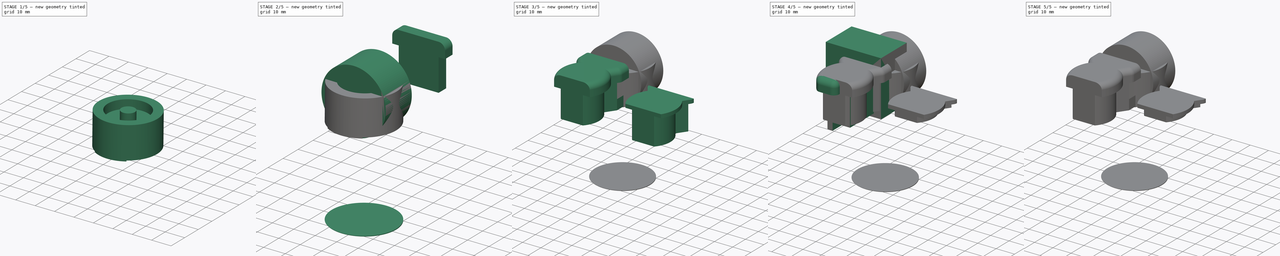
[diagram: build sequence overview — one tinted view per stage of 5, left to right]
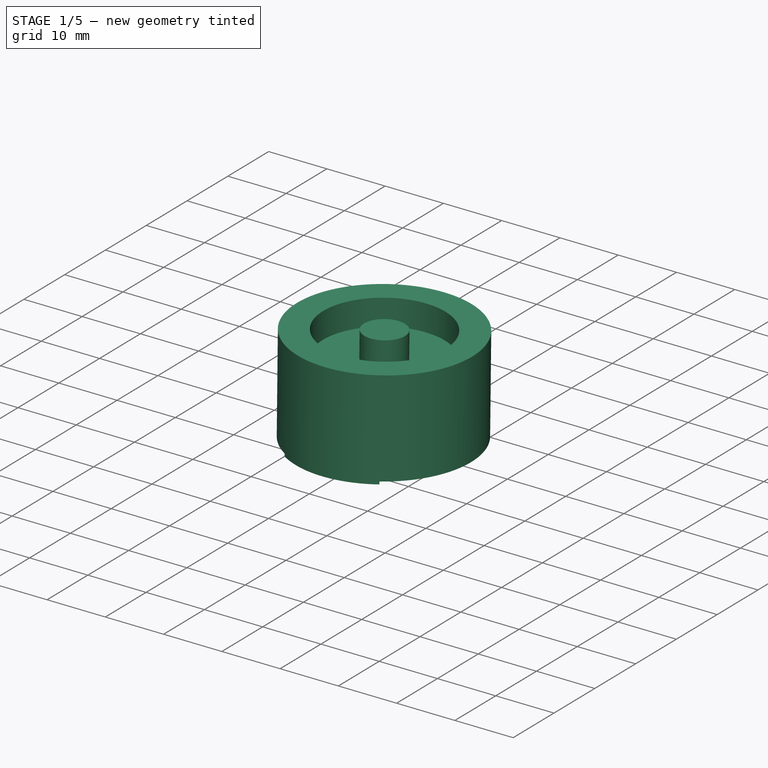
[diagram: stage 1 of 5 — iso view after this stage's code; geometry added in this stage tinted green]
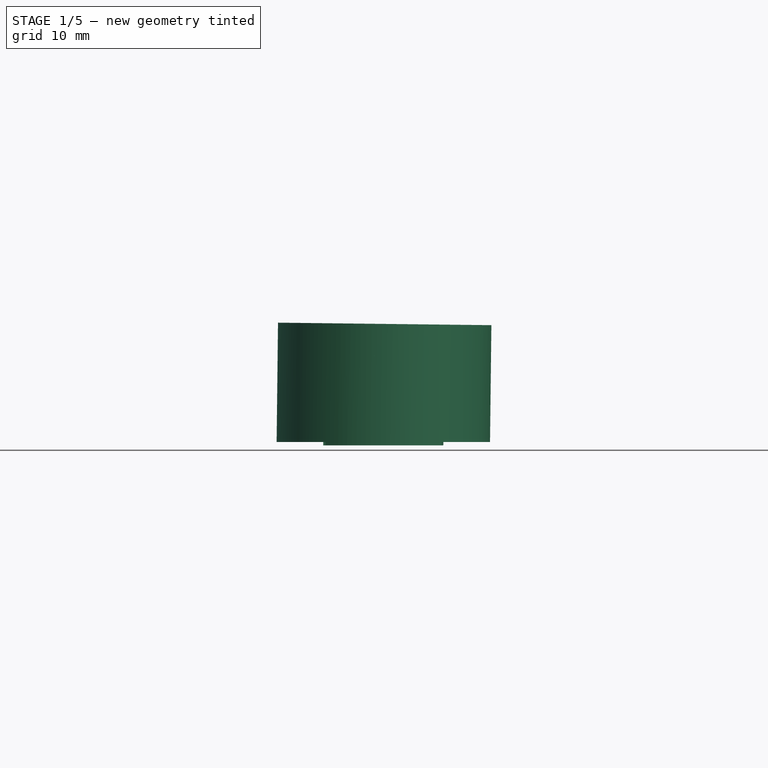
[diagram: stage 1 of 5 — front view after this stage's code; geometry added in this stage tinted green]
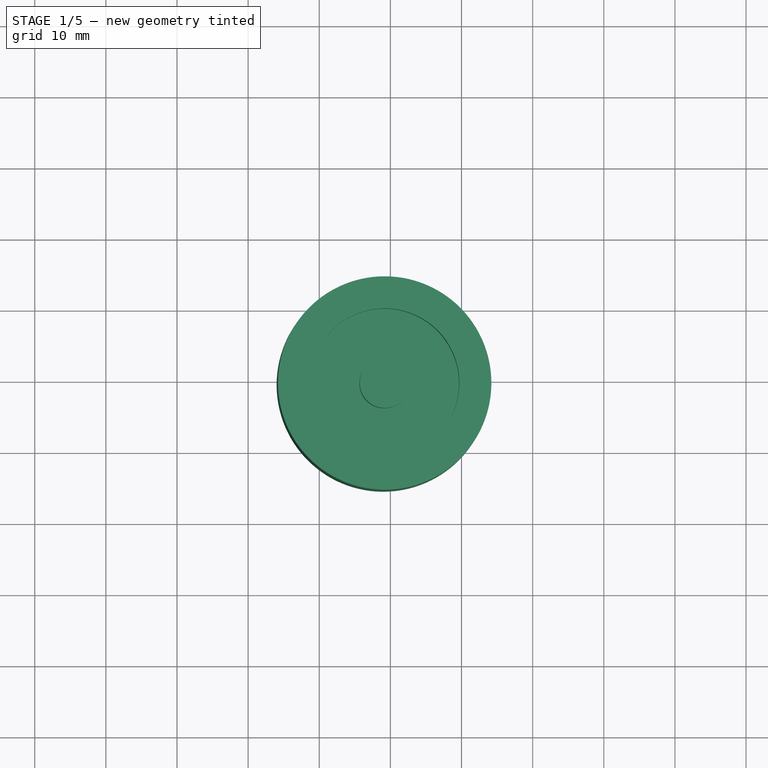
[diagram: stage 1 of 5 — top view after this stage's code; geometry added in this stage tinted green]
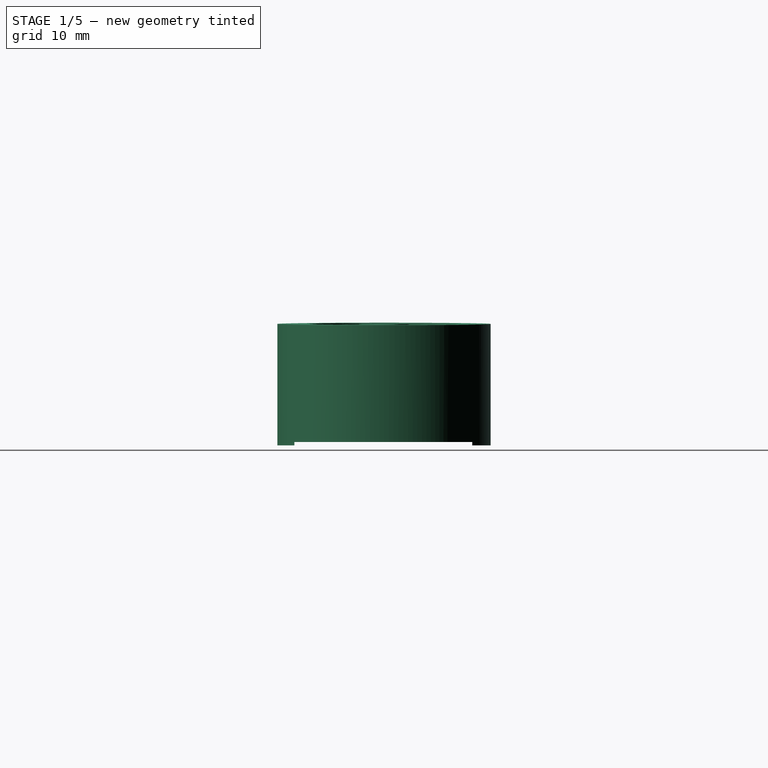
[diagram: stage 1 of 5 — right view after this stage's code; geometry added in this stage tinted green]
FCSTD DOCUMENT  (FreeCAD 0.18R16117 (Git))
Label: puerta
License: CreativeCommons Attribution-ShareAlike
LicenseURL: http://creativecommons.org/licenses/by-sa/4.0/
objects: Part::Cut×15, Part::Box×8, Sketcher::SketchObject×7, Part::Extrusion×6, Part::Cylinder×6, Part::MultiFuse×5, Part::Feature×3, Part::Plane×3, Part::FeaturePython×3, Part::Offset×2, Part::Mirroring×2, PartDesign::Body×1, App::DocumentObjectGroup×1
note: 61 computed .brp shape members not serialized (recipe doc carries the construction recipe); baked Part::Feature solids carry a one-line shape summary decoded from their .brp

FEATURE [Part::Plane] Plane
  AttacherType = Attacher::AttachEngine3D
  Length = 50
  Placement = pos=(64.2,-16.66,-10) rot=(0.999966,0.005847,0.005847;1.5708rad)
  Width = 50
FEATURE [Part::Cylinder] Cylinder004
  Angle = 360
  AttacherType = Attacher::AttachEngine3D
  Height = 10
  Placement = pos=(0,0,-3) rot=(0,0,1;0rad)
  Radius = 3.5
FEATURE [Part::Cylinder] Cylinder005
  Angle = 360
  AttacherType = Attacher::AttachEngine3D
  Height = 5
  Radius = 10.5
FEATURE [Part::Cut] Cut005009  label="iman002"
  Base = -> Cylinder005
  Placement = pos=(89,0.5,10.4) rot=(1,0,0;1.5708rad)
  Tool = -> Cylinder004
FEATURE [Sketcher::SketchObject] Sketch006
  ExternalGeometry = -> [Cut005009]
  Placement = pos=(0,0,0) rot=(1,0,0;1.5708rad)
  sketch-geometry (1):
    g0: Circle CenterX=89 CenterY=10.4 CenterZ=0 NormalX=0 NormalY=0 NormalZ=1 AngleXU=0 Radius=15
  constraints (2):
    c: Coincident(g0,g-3)
    c: Radius(g0) = 15
FEATURE [Part::Extrusion] Extrude003003
  Base = -> Sketch006
  Dir = (0,-1,0)
  DirMode = 2
  FaceMakerClass = Part::FaceMakerBullseye
  LengthFwd = 17.25
  LengthRev = 0
  Solid = true
  Symmetric = false
FEATURE [Part::Cut] Cut005010
  Base = -> Extrude003003
  Placement = pos=(0.201712,0,17.2488) rot=(0.999966,0.005847,-0.005847;1.57083rad)
  Tool = -> Cut005009
FEATURE [Part::Plane] Plane001
  AttacherType = Attacher::AttachEngine3D
  Length = 50
  Placement = pos=(62,-35,-0.86) rot=(0,0,1;0rad)
  Width = 50
FEATURE [Part::FeaturePython] Slice  # WARN: FeaturePython — macro-defined, semantics opaque (R4)
  Base = -> Cut005010
  Mode = 1
  Tolerance = 0
  Tools = -> [Plane001]
FEATURE [Part::FeaturePython] Slice_child0  label="Slice.0"  # WARN: FeaturePython — macro-defined, semantics opaque (R4)
  Base = -> Slice
  FilterType = 1
  Invert = false
  OverrideMaxVal = 0
  WindowFrom = 80
  WindowTo = 100
  items = 0
FEATURE [Part::Plane] Plane002
  AttacherType = Attacher::AttachEngine3D
  Length = 50
  Placement = pos=(64.2,-16.66,-10) rot=(0.999983,0.005847,0;3.14156rad)
  Width = 25
FEATURE [Part::Box] Box007  label="Cube007"
  AttacherType = Attacher::AttachEngine3D
  Height = 0.5
  Length = 50
  Placement = pos=(66,-23,-0.9) rot=(0,0,1;0rad)
  Width = 25
FEATURE [Part::Cut] Cut005011
  Base = -> Slice_child0
  Tool = -> Box007
FEATURE [App::DocumentObjectGroup] GrExplode_Slice  label="Exploded Slice"
  Group = -> [Slice_child1,Cut005011]
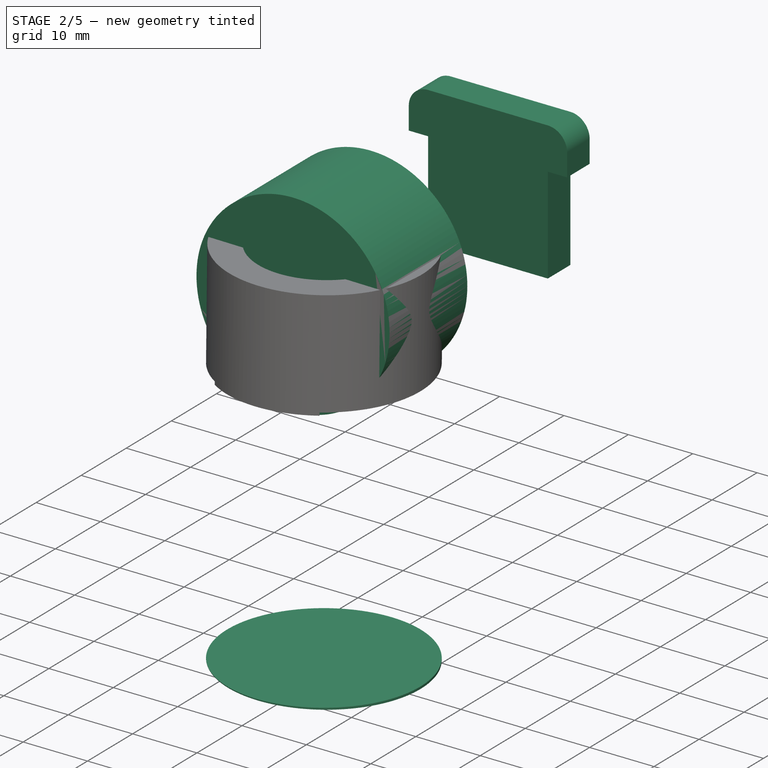
[diagram: stage 2 of 5 — iso view after this stage's code; geometry added in this stage tinted green]
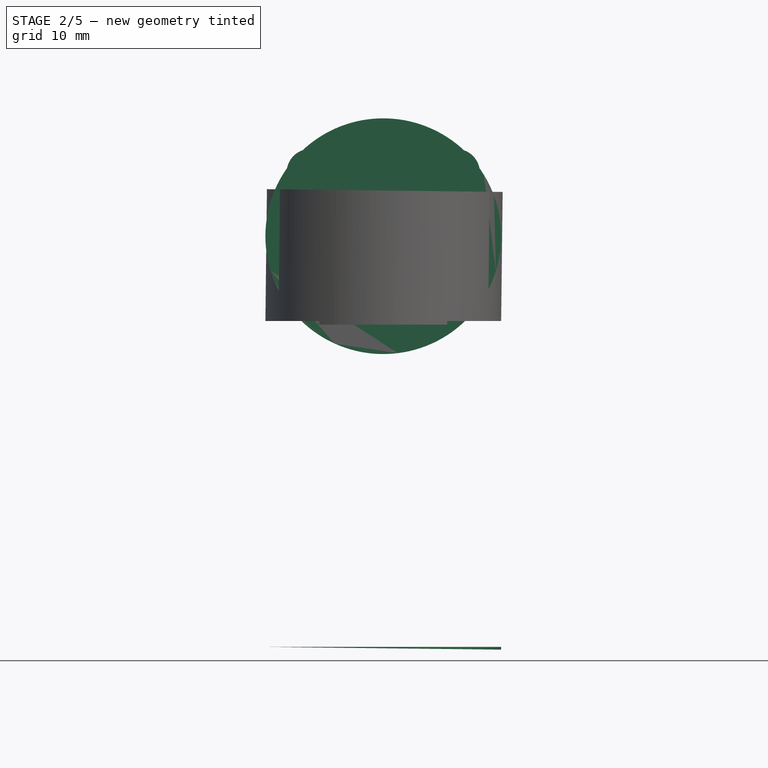
[diagram: stage 2 of 5 — front view after this stage's code; geometry added in this stage tinted green]
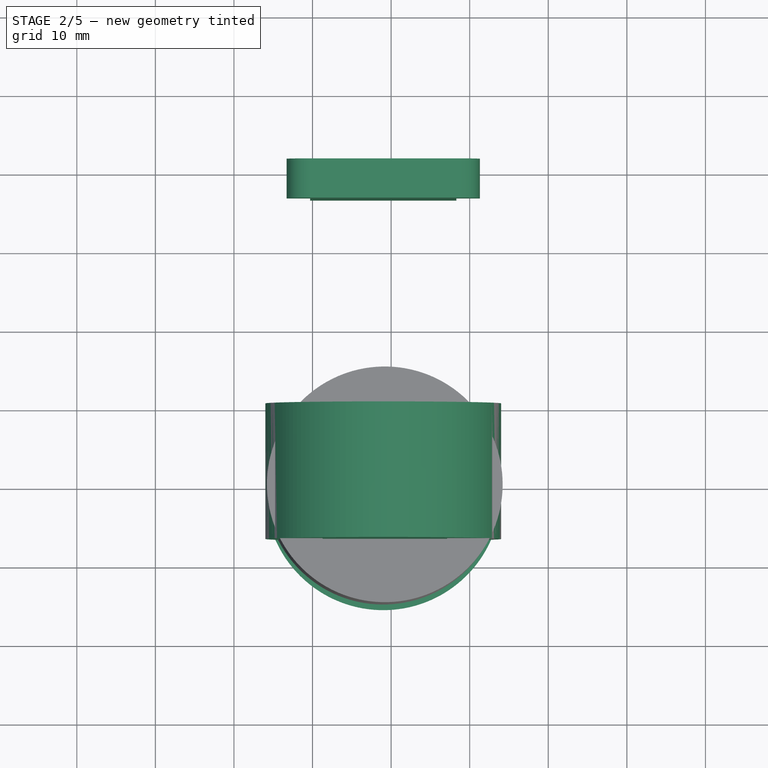
[diagram: stage 2 of 5 — top view after this stage's code; geometry added in this stage tinted green]
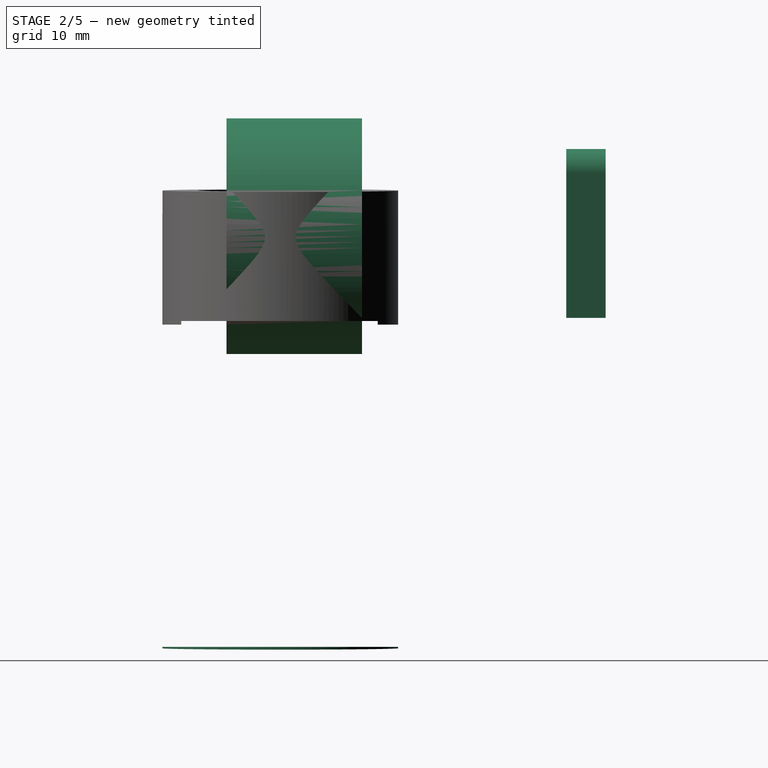
[diagram: stage 2 of 5 — right view after this stage's code; geometry added in this stage tinted green]
FEATURE [Part::Feature] Cut005001  label="Cut006"
  shape: bbox 13.44 x 24.87 x 21.5 mm, 19 faces (baked)
FEATURE [Part::Feature] Cut005002  label="Cut007"
  shape: bbox 13.44 x 24.87 x 21.5 mm, 19 faces (baked)
FEATURE [Part::Mirroring] Part__Mirroring  label="Cut007 (Mirror #1)"
  Base = (0,0,0)
  Normal = (1,0,0)
  Placement = pos=(178,0,0) rot=(0,0,1;0rad)
  Source = -> Cut005002
FEATURE [Part::MultiFuse] Fusion001  label="pieza1"
  Shapes = -> [Cut005001,Part__Mirroring]
FEATURE [Sketcher::SketchObject] Sketch003
  ExternalGeometry = -> [Fusion001]
  MapMode = 5
  Placement = pos=(0,-28,0) rot=(0,0.707107,0.707107;3.14159rad)
  Support = -> [Cut005002]
  sketch-geometry (7):
    g0: LineSegment StartX=-98.3 StartY=21.5 StartZ=0 EndX=-89 EndY=21.5 EndZ=0
    g1: LineSegment StartX=-101.3 StartY=15 StartZ=0 EndX=-98.3 EndY=15 EndZ=0
    g2: LineSegment StartX=-98.3 StartY=15 StartZ=0 EndX=-98.3 EndY=0 EndZ=0
    g3: LineSegment StartX=-98.3 StartY=0 StartZ=0 EndX=-89 EndY=0 EndZ=0
    g4: ArcOfCircle CenterX=-98.2801 CenterY=18.4801 CenterZ=0 NormalX=0 NormalY=0 NormalZ=1 AngleXU=0 Radius=3.02 StartAngle=1.5774 EndAngle=3.13499
    g5: LineSegment StartX=-89 StartY=21.5 StartZ=0 EndX=-89 EndY=0 EndZ=0
    g6: LineSegment StartX=-101.3 StartY=18.5 StartZ=0 EndX=-101.3 EndY=15 EndZ=0
  constraints (16):
    c: Coincident(g0,g-3)
    c: Coincident(g0,g-3)
    c: Coincident(g1,g-5)
    c: Coincident(g3,g2)
    c: Horizontal(g3)
    c: Coincident(g4,g0)
    c: Coincident(g1,g2)
    c: Coincident(g2,g-5)
    c: Coincident(g5,g0)
    c: Coincident(g5,g3)
    c: Vertical(g5)
    c: Radius(g4) = 3.02
    c: Coincident(g6,g4)
    c: Coincident(g6,g1)
    c: Vertical(g6)
    c: Coincident(g1,g-4)
FEATURE [Part::Extrusion] Extrude003
  Base = -> Sketch003
  Dir = (0,1,-2e-16)
  DirMode = 2
  FaceMakerClass = Part::FaceMakerBullseye
  LengthFwd = 5
  LengthRev = 0
  Placement = pos=(0,54,0) rot=(0,0,1;0rad)
  Solid = true
  Symmetric = false
FEATURE [Part::Feature] Extrude003001  label="Extrude004"
  Placement = pos=(0,54,0) rot=(0,0,1;0rad)
  shape: bbox 12.3 x 5 x 21.5 mm, 9 faces (baked)
FEATURE [Part::Mirroring] Part__Mirroring001  label="Extrude004 (Mirror #2)"
  Base = (0,0,0)
  Normal = (1,0,0)
  Placement = pos=(178,0,0) rot=(0,0,1;0rad)
  Source = -> Extrude003001
FEATURE [Part::Cylinder] Cylinder002
  Angle = 360
  AttacherType = Attacher::AttachEngine3D
  Height = 5
  Radius = 10.5
FEATURE [Part::Cylinder] Cylinder003
  Angle = 360
  AttacherType = Attacher::AttachEngine3D
  Height = 10
  Placement = pos=(0,0,-3) rot=(0,0,1;0rad)
  Radius = 3.5
FEATURE [Part::Cut] Cut005007  label="iman001"
  Base = -> Cylinder002
  Placement = pos=(89,0.5,10.4) rot=(1,0,0;1.5708rad)
  Tool = -> Cylinder003
FEATURE [Sketcher::SketchObject] Sketch004
  MapMode = 5
  Placement = pos=(0,0,0) rot=(1,0,0;1.5708rad)
  Support = -> [XZ_Plane]
FEATURE [PartDesign::Body] Body
  Group = -> [Sketch,Sketch004]
  Origin = -> Origin
FEATURE [Sketcher::SketchObject] Sketch005
  ExternalGeometry = -> [Cut005007]
  Placement = pos=(0,0,0) rot=(1,0,0;1.5708rad)
  sketch-geometry (1):
    g0: Circle CenterX=89 CenterY=10.4 CenterZ=0 NormalX=0 NormalY=0 NormalZ=1 AngleXU=0 Radius=15
  constraints (2):
    c: Coincident(g0,g-3)
    c: Radius(g0) = 15
FEATURE [Part::Extrusion] Extrude003002
  Base = -> Sketch005
  Dir = (0,-1,0)
  DirMode = 2
  FaceMakerClass = Part::FaceMakerBullseye
  LengthFwd = 17.25
  LengthRev = 0
  Solid = true
  Symmetric = false
FEATURE [Part::Cut] Cut005008
  Base = -> Extrude003002
  Tool = -> Cut005007
FEATURE [Part::FeaturePython] Slice_child1  label="Slice.1"  # WARN: FeaturePython — macro-defined, semantics opaque (R4)
  Base = -> Slice
  FilterType = 1
  Invert = false
  OverrideMaxVal = 0
  Placement = pos=(0,0,-41) rot=(0,0,1;0rad)
  WindowFrom = 80
  WindowTo = 100
  items = 1
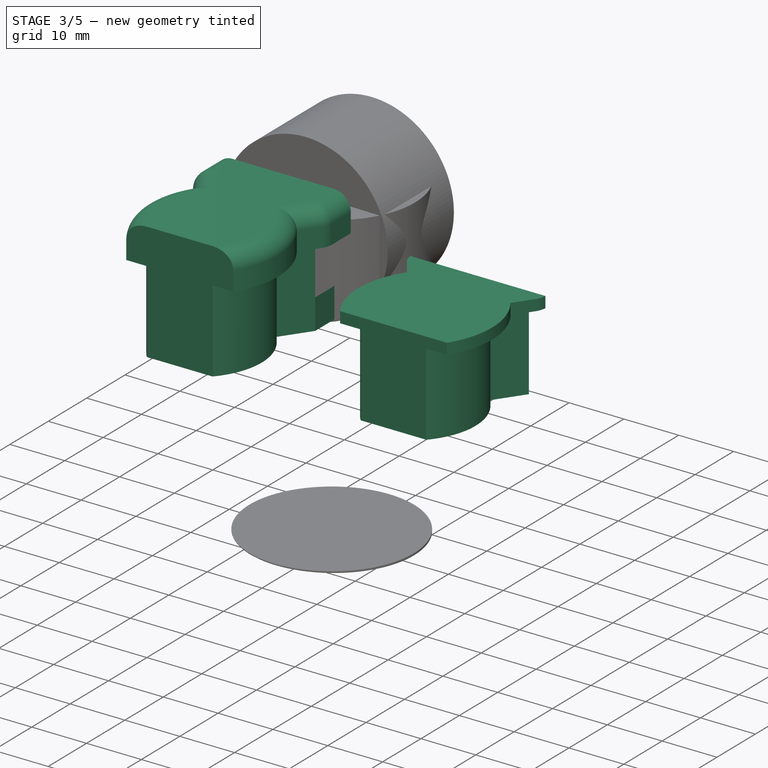
[diagram: stage 3 of 5 — iso view after this stage's code; geometry added in this stage tinted green]
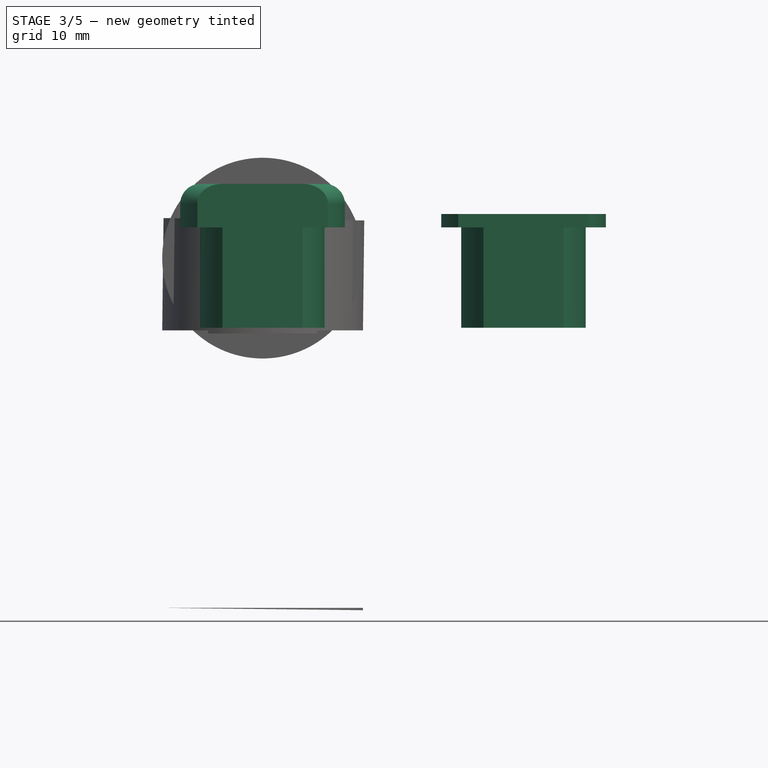
[diagram: stage 3 of 5 — front view after this stage's code; geometry added in this stage tinted green]
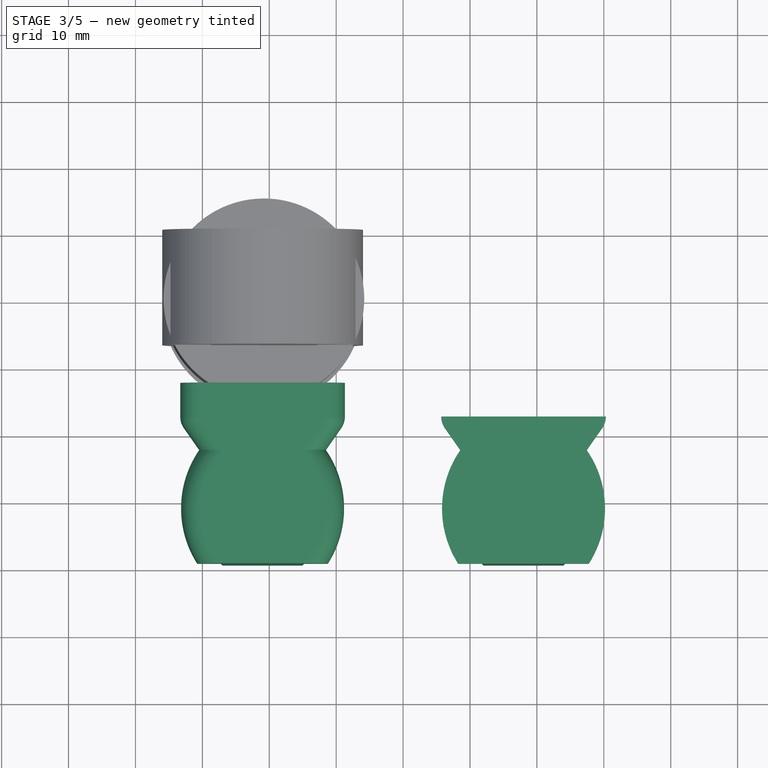
[diagram: stage 3 of 5 — top view after this stage's code; geometry added in this stage tinted green]
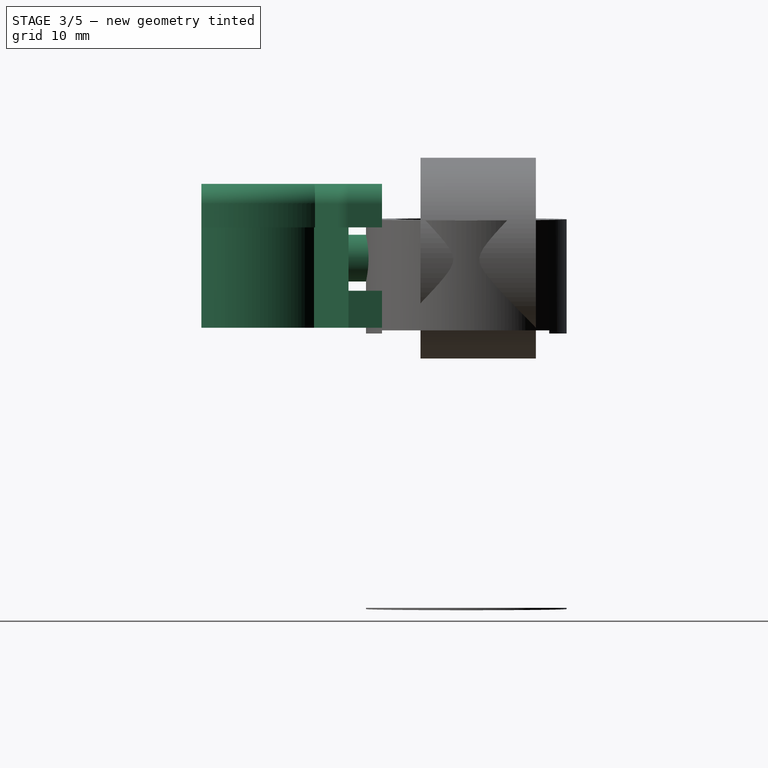
[diagram: stage 3 of 5 — right view after this stage's code; geometry added in this stage tinted green]
FEATURE [Part::MultiFuse] Fusion002
  Placement = pos=(39,0,0) rot=(0,0,1;0rad)
  Shapes = -> [Cut005001,Part__Mirroring]
FEATURE [Part::Box] Box005  label="Cube005"
  AttacherType = Attacher::AttachEngine3D
  Height = 30
  Length = 60
  Placement = pos=(112,-59,17) rot=(0,0,1;0rad)
  Width = 60
FEATURE [Part::Cut] Cut005003
  Base = -> Fusion002
  Tool = -> Box005
FEATURE [Part::Cylinder] Cylinder
  Angle = 360
  AttacherType = Attacher::AttachEngine3D
  Height = 5
  Radius = 10.5
FEATURE [Part::Cylinder] Cylinder001
  Angle = 360
  AttacherType = Attacher::AttachEngine3D
  Height = 10
  Placement = pos=(0,0,-3) rot=(0,0,1;0rad)
  Radius = 3.5
FEATURE [Part::Cut] Cut005005  label="iman"
  Base = -> Cylinder
  Placement = pos=(89,-23,10.4) rot=(1,0,0;1.5708rad)
  Tool = -> Cylinder001
FEATURE [Part::MultiFuse] Fusion003
  Placement = pos=(0,-54,0) rot=(0,0,1;0rad)
  Shapes = -> [Part__Mirroring001,Extrude003]
FEATURE [Part::MultiFuse] Fusion004
  Shapes = -> [Fusion003,Fusion001]
FEATURE [Part::Cut] Cut005006  label="pieza"
  Base = -> Fusion004
  Tool = -> Cut005005
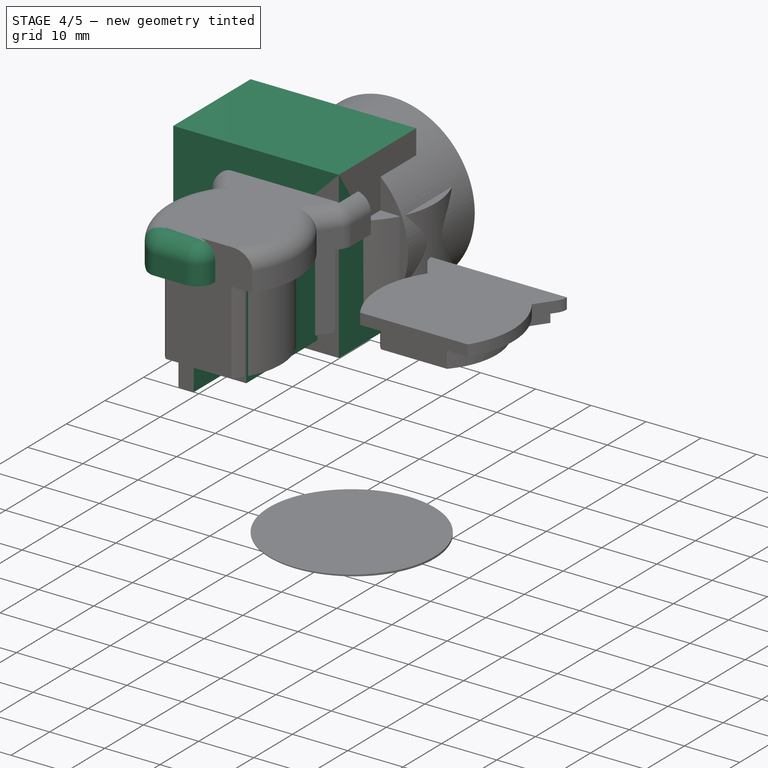
[diagram: stage 4 of 5 — iso view after this stage's code; geometry added in this stage tinted green]
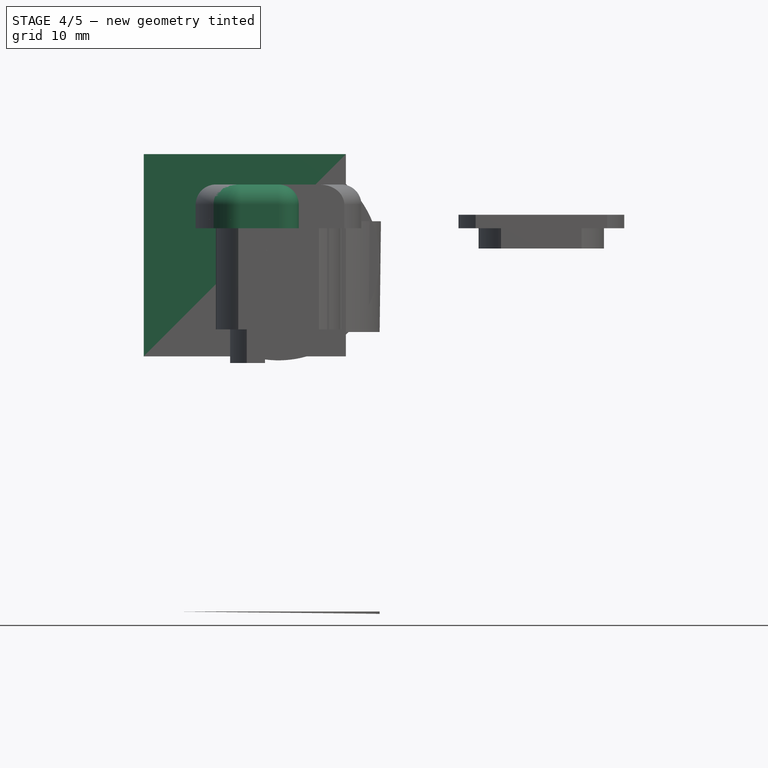
[diagram: stage 4 of 5 — front view after this stage's code; geometry added in this stage tinted green]
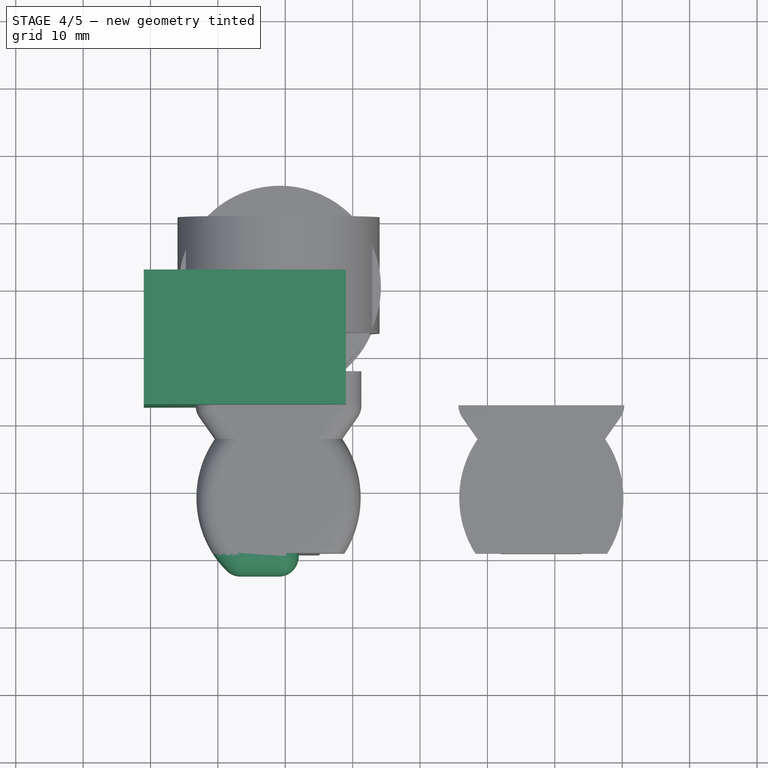
[diagram: stage 4 of 5 — top view after this stage's code; geometry added in this stage tinted green]
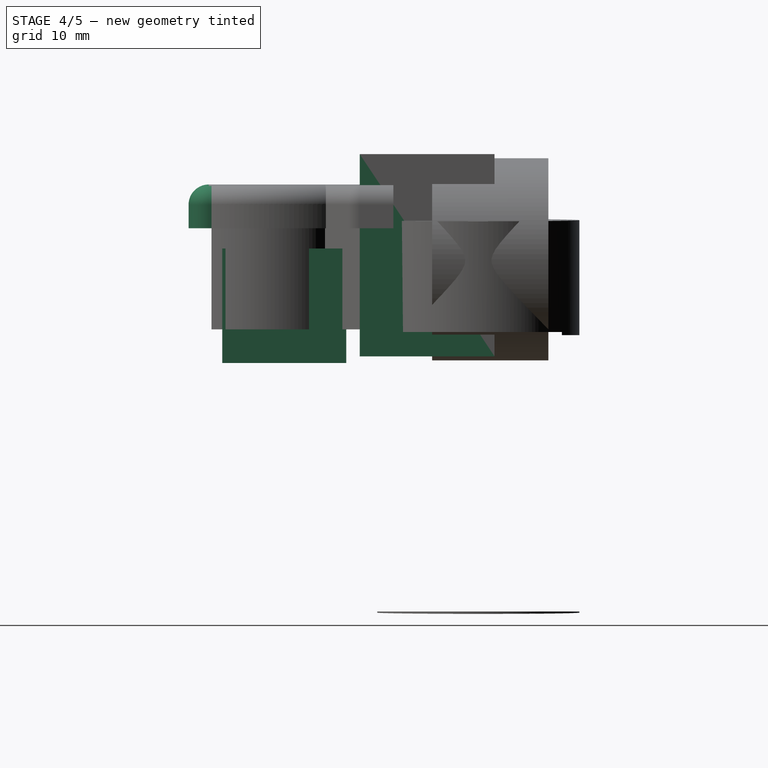
[diagram: stage 4 of 5 — right view after this stage's code; geometry added in this stage tinted green]
FEATURE [Sketcher::SketchObject] Sketch
  MapMode = 5
  Support = -> [XY_Plane]
  sketch-geometry (5):
    g0: LineSegment StartX=79.7 StartY=-28 StartZ=0 EndX=89 EndY=-28 EndZ=0
    g1: LineSegment StartX=89 StartY=-28 StartZ=0 EndX=89 EndY=-50.4 EndZ=0
    g2: LineSegment StartX=89 StartY=-50.4 StartZ=0 EndX=83.4 EndY=-50.4 EndZ=0
    g3: LineSegment StartX=79.7 StartY=-28 StartZ=0 EndX=83.3135 EndY=-33.1607 EndZ=0
    g4: ArcOfCircle CenterX=92.0889 CenterY=-41.7365 CenterZ=0 NormalX=0 NormalY=0 NormalZ=1 AngleXU=0 Radius=12.27 StartAngle=2.36769 EndAngle=3.92552
  constraints (16):
    c: Horizontal(g0)
    c: Coincident(g1,g0)
    c: Vertical(g1)
    c: Coincident(g2,g1)
    c: Horizontal(g2)
    c: Coincident(g3,g0)
    c: Coincident(g4,g3)
    c: Coincident(g4,g2)
    c: DistanceX(g0,g0) = 9.3
    c: DistanceX(g2,g2) = 5.6
    c: DistanceY(g1,g1) = 22.4
    c: Distance(g3) = 6.3
    c: DistanceY(g0,g-1) = 28
    c: DistanceX(g-1,g0) = 89
    c: Radius(g4) = 12.27
    c: Angle(g3,g0) = 0.959931
FEATURE [Part::Extrusion] Extrude
  Base = -> Sketch
  Dir = (0,0,1)
  DirMode = 2
  FaceMakerClass = Part::FaceMakerBullseye
  LengthFwd = 30
  LengthRev = 0
  Solid = true
  Symmetric = false
FEATURE [Part::Offset] Offset
  Fill = false
  Intersection = false
  Join = 2
  Mode = 0
  Placement = pos=(0,0,-7) rot=(0,0,1;0rad)
  SelfIntersection = false
  Source = -> Extrude
  Value = -2
FEATURE [Sketcher::SketchObject] Sketch002
  MapMode = 5
  Support = -> [XY_Plane002]
  sketch-geometry (5):
    g0: LineSegment StartX=79.7 StartY=-28 StartZ=0 EndX=89 EndY=-28 EndZ=0
    g1: LineSegment StartX=89 StartY=-28 StartZ=0 EndX=89 EndY=-50.4 EndZ=0
    g2: LineSegment StartX=89 StartY=-50.4 StartZ=0 EndX=83.4 EndY=-50.4 EndZ=0
    g3: LineSegment StartX=79.7 StartY=-28 StartZ=0 EndX=83.3135 EndY=-33.1607 EndZ=0
    g4: ArcOfCircle CenterX=92.0889 CenterY=-41.7365 CenterZ=0 NormalX=0 NormalY=0 NormalZ=1 AngleXU=0 Radius=12.27 StartAngle=2.36769 EndAngle=3.92552
  constraints (16):
    c: Horizontal(g0)
    c: Coincident(g1,g0)
    c: Vertical(g1)
    c: Coincident(g2,g1)
    c: Horizontal(g2)
    c: Coincident(g3,g0)
    c: Coincident(g4,g3)
    c: Coincident(g4,g2)
    c: DistanceX(g0,g0) = 9.3
    c: DistanceX(g2,g2) = 5.6
    c: DistanceY(g1,g1) = 22.4
    c: Distance(g3) = 6.3
    c: DistanceY(g0,g-1) = 28
    c: DistanceX(g-1,g0) = 89
    c: Radius(g4) = 12.27
    c: Angle(g3,g0) = 0.959931
FEATURE [Part::Extrusion] Extrude002
  Base = -> Sketch002
  Dir = (0,0,1)
  DirMode = 2
  FaceMakerClass = Part::FaceMakerBullseye
  LengthFwd = 3.5
  LengthRev = 0
  Placement = pos=(0,0,15) rot=(0,0,1;0rad)
  Solid = true
  Symmetric = false
FEATURE [Part::Offset] Offset001
  Fill = false
  Intersection = false
  Join = 0
  Mode = 0
  SelfIntersection = false
  Source = -> Extrude002
  Value = 3
FEATURE [Part::Box] Box  label="Cube"
  AttacherType = Attacher::AttachEngine3D
  Height = 10
  Length = 60
  Placement = pos=(44,-58,5) rot=(0,0,1;0rad)
  Width = 60
FEATURE [Part::Cut] Cut001
  Base = -> Offset001
  Tool = -> Box
FEATURE [Part::Box] Box002  label="Cube002"
  AttacherType = Attacher::AttachEngine3D
  Height = 30
  Length = 30
  Placement = pos=(69,-28,-4) rot=(0,0,1;0rad)
  Width = 20
FEATURE [Part::Box] Box004  label="Cube004"
  AttacherType = Attacher::AttachEngine3D
  Height = 16
  Length = 10
  Placement = pos=(86.5,-48.4,-1) rot=(0,0,1;0rad)
  Width = 18.4
FEATURE [Part::Box] Box006  label="Cube006"
  AttacherType = Attacher::AttachEngine3D
  Height = 30
  Length = 60
  Placement = pos=(112,-59,-18) rot=(0,0,1;0rad)
  Width = 60
FEATURE [Part::Cut] Cut005004
  Base = -> Cut005003
  Tool = -> Box006
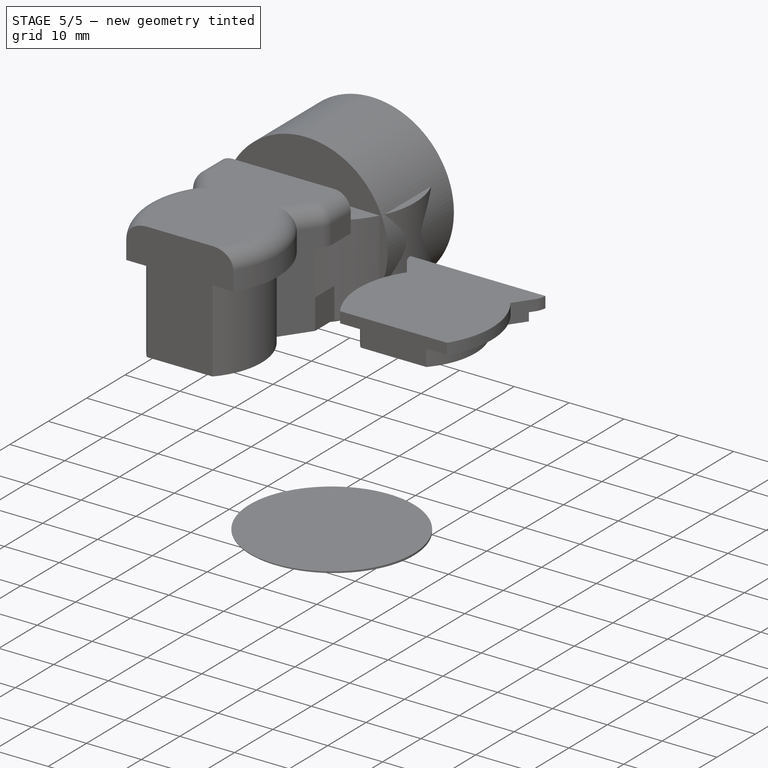
[diagram: stage 5 of 5 — iso view after this stage's code; geometry added in this stage tinted green]
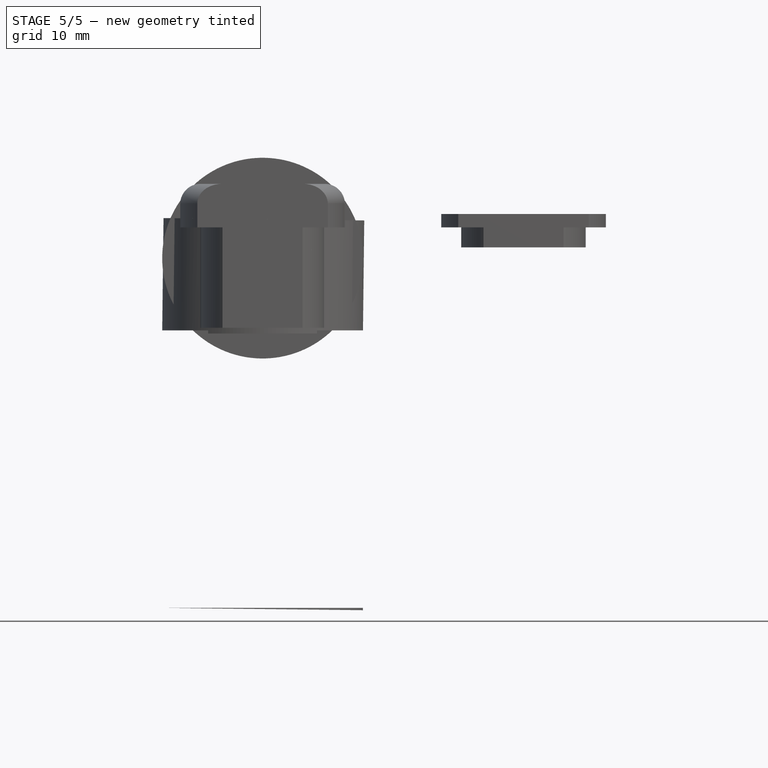
[diagram: stage 5 of 5 — front view after this stage's code; geometry added in this stage tinted green]
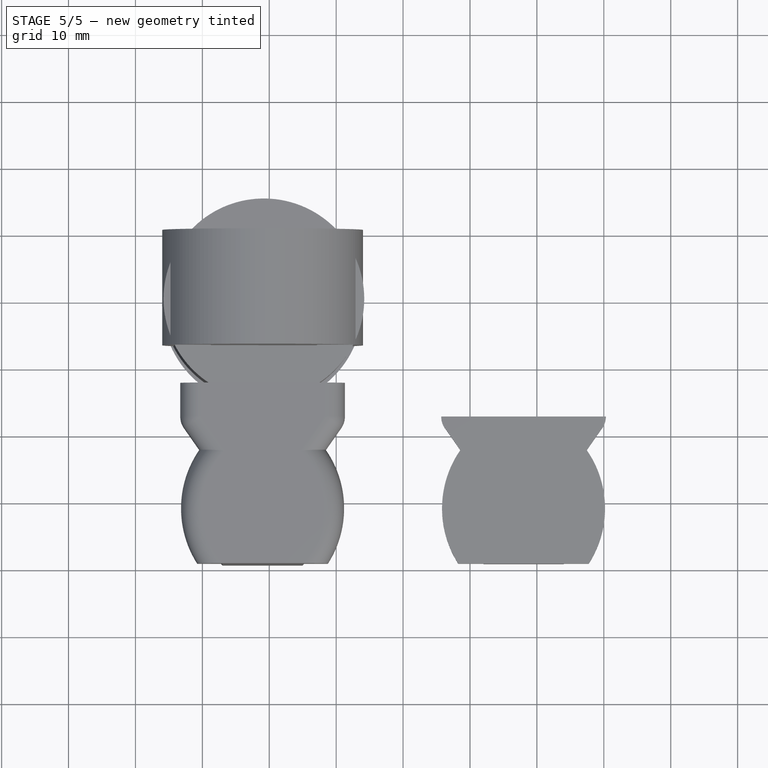
[diagram: stage 5 of 5 — top view after this stage's code; geometry added in this stage tinted green]
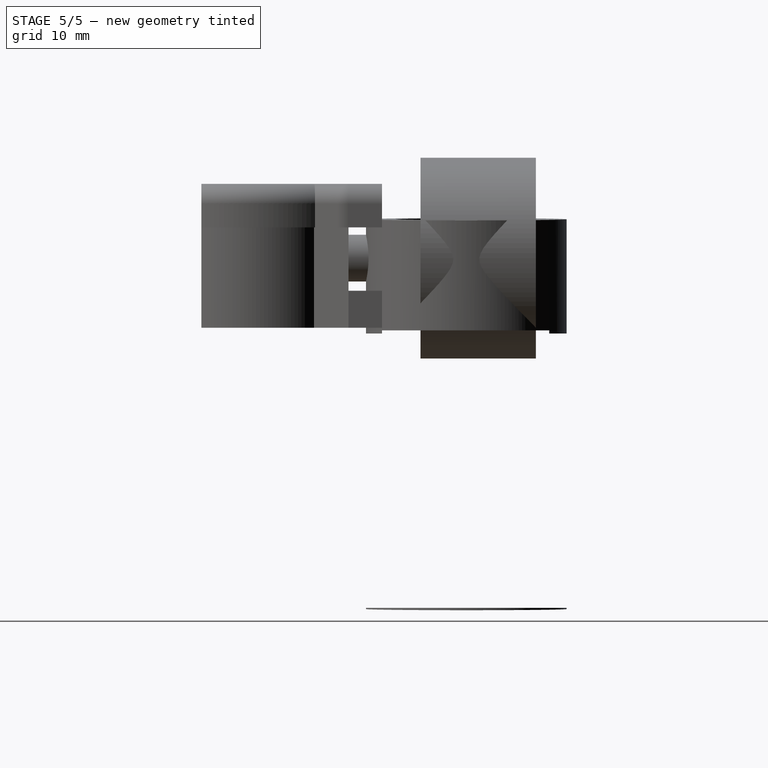
[diagram: stage 5 of 5 — right view after this stage's code; geometry added in this stage tinted green]
FEATURE [Sketcher::SketchObject] Sketch001
  MapMode = 5
  Support = -> [XY_Plane001]
  sketch-geometry (5):
    g0: LineSegment StartX=79.7 StartY=-28 StartZ=0 EndX=89 EndY=-28 EndZ=0
    g1: LineSegment StartX=89 StartY=-28 StartZ=0 EndX=89 EndY=-50.4 EndZ=0
    g2: LineSegment StartX=89 StartY=-50.4 StartZ=0 EndX=83.4 EndY=-50.4 EndZ=0
    g3: LineSegment StartX=79.7 StartY=-28 StartZ=0 EndX=83.3135 EndY=-33.1607 EndZ=0
    g4: ArcOfCircle CenterX=92.0889 CenterY=-41.7365 CenterZ=0 NormalX=0 NormalY=0 NormalZ=1 AngleXU=0 Radius=12.27 StartAngle=2.36769 EndAngle=3.92552
  constraints (16):
    c: Horizontal(g0)
    c: Coincident(g1,g0)
    c: Vertical(g1)
    c: Coincident(g2,g1)
    c: Horizontal(g2)
    c: Coincident(g3,g0)
    c: Coincident(g4,g3)
    c: Coincident(g4,g2)
    c: DistanceX(g0,g0) = 9.3
    c: DistanceX(g2,g2) = 5.6
    c: DistanceY(g1,g1) = 22.4
    c: Distance(g3) = 6.3
    c: DistanceY(g0,g-1) = 28
    c: DistanceX(g-1,g0) = 89
    c: Radius(g4) = 12.27
    c: Angle(g3,g0) = 0.959931
FEATURE [Part::Extrusion] Extrude001
  Base = -> Sketch001
  Dir = (0,0,1)
  DirMode = 2
  FaceMakerClass = Part::FaceMakerBullseye
  LengthFwd = 15
  LengthRev = 0
  Solid = true
  Symmetric = false
FEATURE [Part::Cut] Cut
  Base = -> Extrude001
  Tool = -> Offset
FEATURE [Part::Box] Box001  label="Cube001"
  AttacherType = Attacher::AttachEngine3D
  Height = 30
  Length = 20
  Placement = pos=(89,-69,-4) rot=(0,0,1;0rad)
  Width = 60
FEATURE [Part::MultiFuse] Fusion
  Shapes = -> [Cut001,Cut]
FEATURE [Part::Cut] Cut002
  Base = -> Fusion
  Tool = -> Box001
FEATURE [Part::Box] Box003  label="Cube003"
  AttacherType = Attacher::AttachEngine3D
  Height = 30
  Length = 30
  Placement = pos=(69,-70,-4) rot=(0,0,1;0rad)
  Width = 20
FEATURE [Part::Cut] Cut003
  Base = -> Cut002
  Tool = -> Box002
FEATURE [Part::Cut] Cut004
  Base = -> Cut003
  Tool = -> Box003
FEATURE [Part::Cut] Cut005
  Base = -> Cut004
  Tool = -> Box004
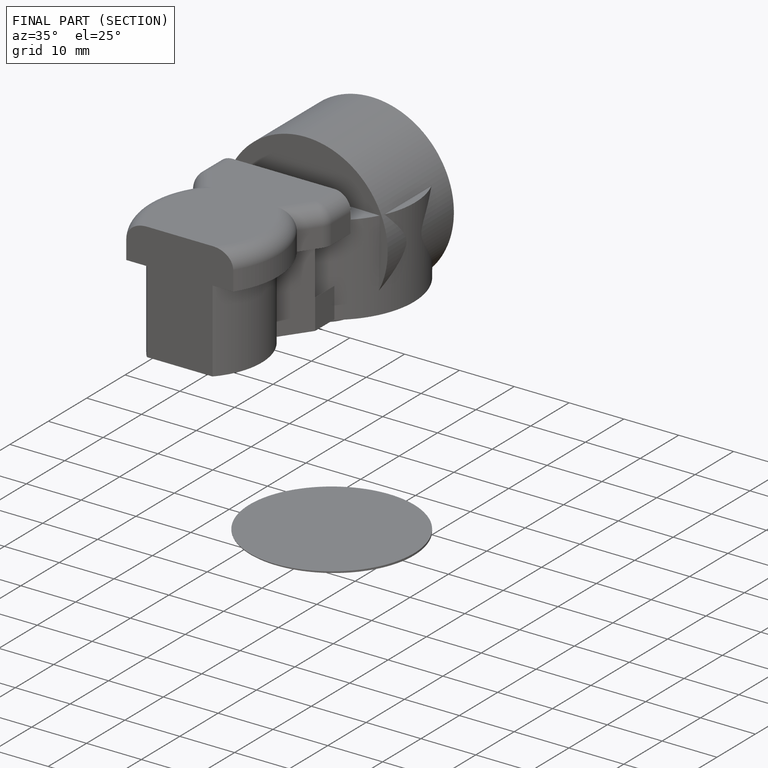
[diagram: finished part — half-section view (interior)]
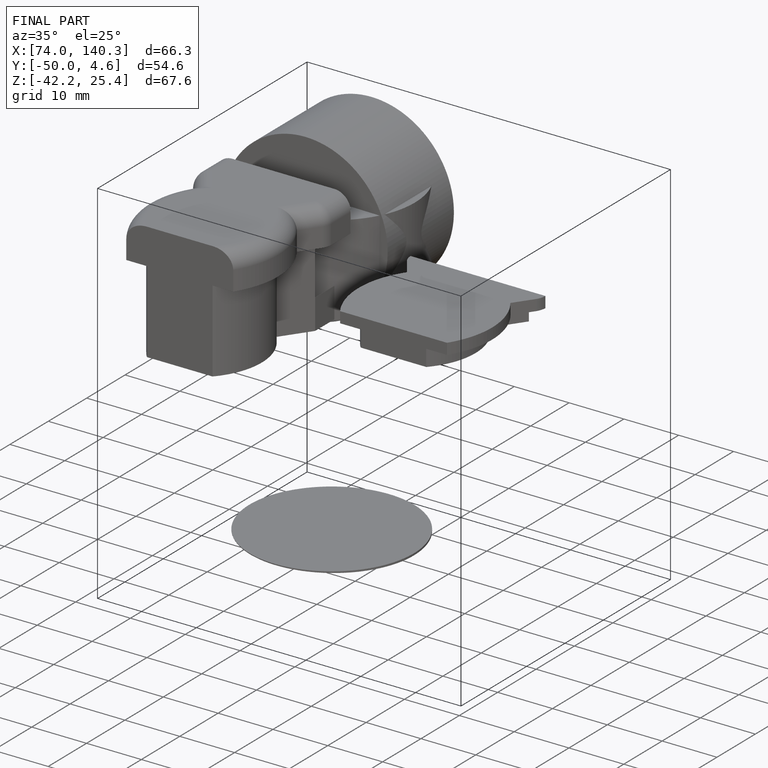
[diagram: finished part — iso view with bounding-box wireframe]
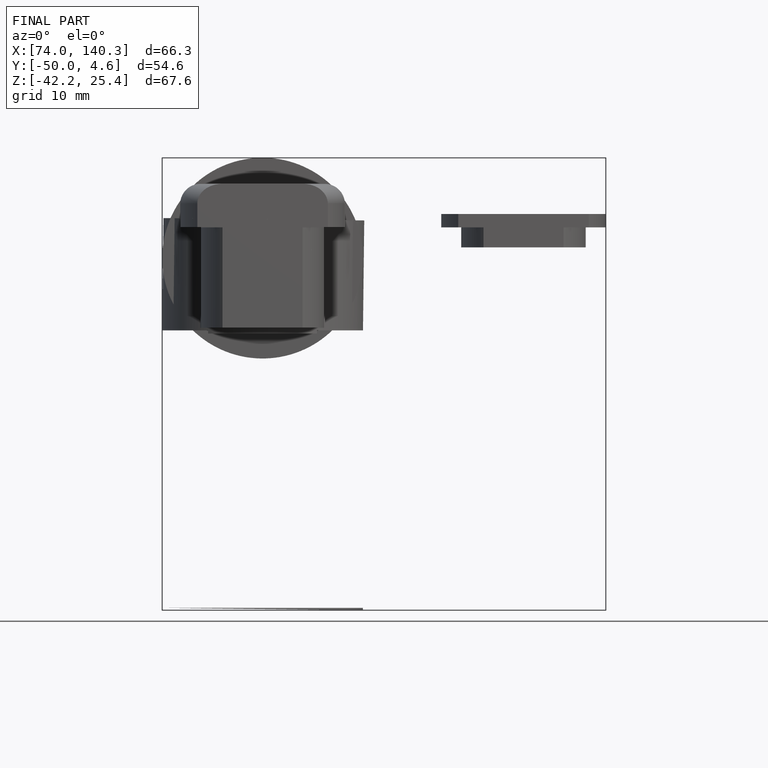
[diagram: finished part — front view with bounding-box wireframe]
